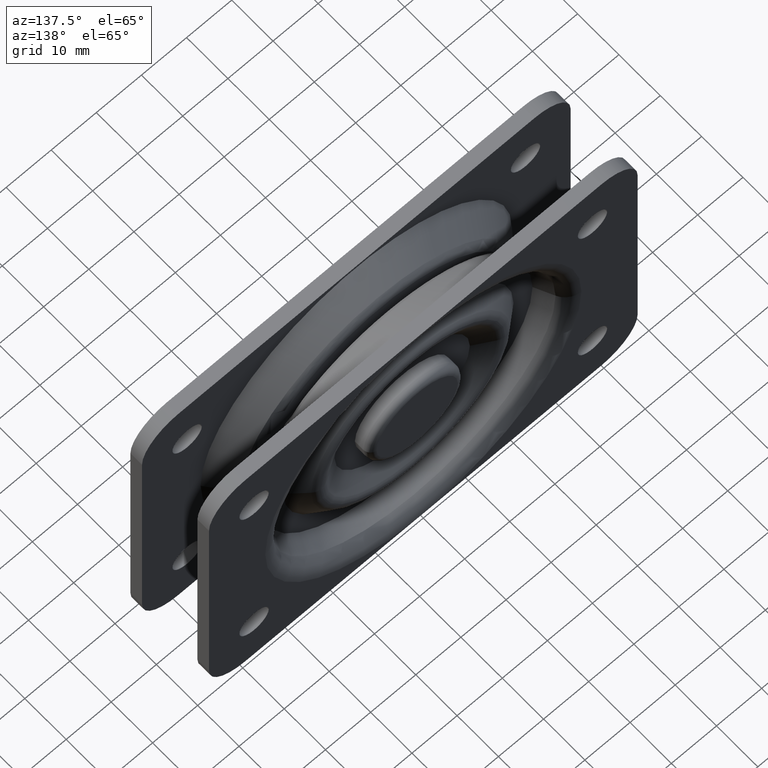
[diagram: clean part render]
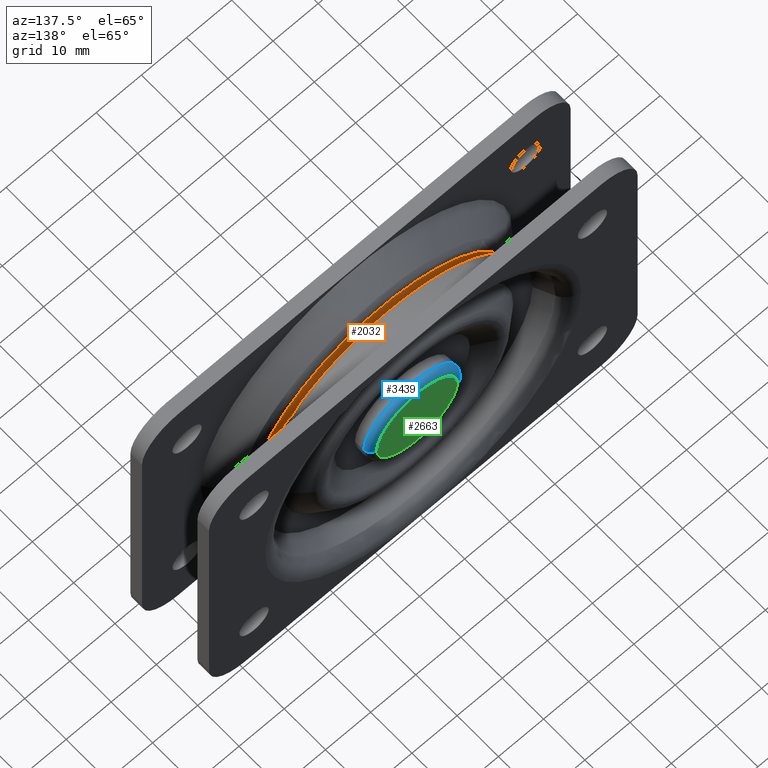
[diagram: same view with three faces highlighted in distinct colors, each labeled with its STEP entity id]
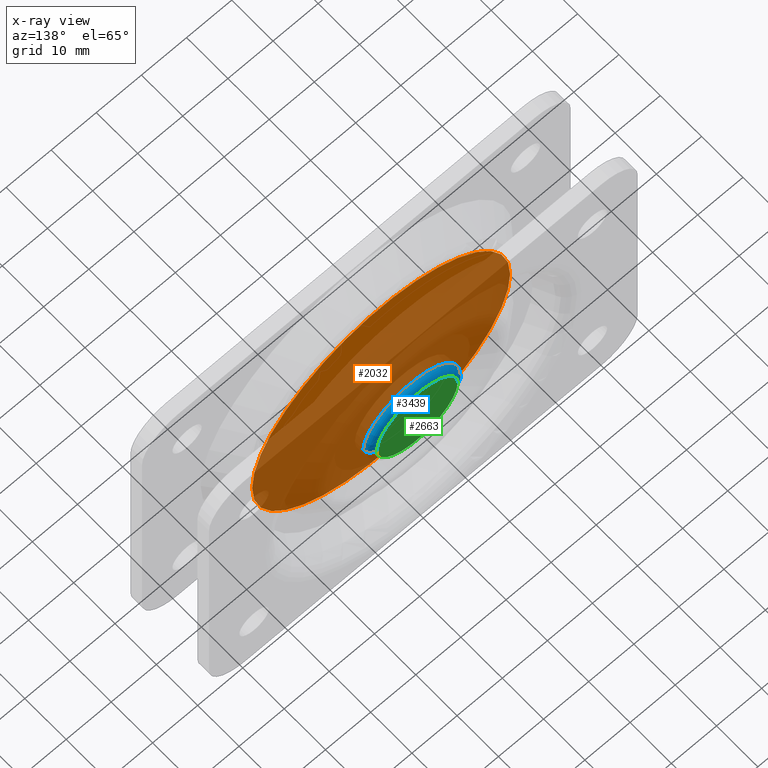
[diagram: x-ray of the same camera — body ghosted, the three highlighted faces saturated]
A machine part, auxiliary view with three faces highlighted in distinct colors.
The next image is the same camera in x-ray (body ghosted, the three faces saturated) — at least one of them is partly hidden behind the body in this view.
Their STEP definitions:

[orange] entity #2032 — the highlighted planar face has unit normal (0, 1, 0).
#175 = AXIS2_PLACEMENT_3D ( 'NONE', #3744, #1109, #3370 ) ;
#188 = AXIS2_PLACEMENT_3D ( 'NONE', #3596, #3578, #3200 ) ;
#413 = CARTESIAN_POINT ( 'NONE',  ( 1.773019755452688432E-15, -10.20000000000000284, -1.985451312893575829E-15 ) ) ;
#502 = EDGE_LOOP ( 'NONE', ( #2780, #1042 ) ) ;
#1042 = ORIENTED_EDGE ( 'NONE', *, *, #4201, .T. ) ;
#1109 = DIRECTION ( 'NONE',  ( 0.0000000000000000000, 1.000000000000000000, 0.0000000000000000000 ) ) ;
#1375 = AXIS2_PLACEMENT_3D ( 'NONE', #413, #1575, #1591 ) ;
#1575 = DIRECTION ( 'NONE',  ( 0.0000000000000000000, 1.000000000000000000, 0.0000000000000000000 ) ) ;
#1591 = DIRECTION ( 'NONE',  ( 1.000000000000000000, 0.0000000000000000000, 0.0000000000000000000 ) ) ;
#1856 = EDGE_CURVE ( 'NONE', #3301, #2028, #3743, .T. ) ;
#2028 = VERTEX_POINT ( 'NONE', #3575 ) ;
#2032 = ADVANCED_FACE ( 'NONE', ( #4158 ), #2091, .T. ) ;
#2091 = PLANE ( 'NONE',  #175 ) ;
#2780 = ORIENTED_EDGE ( 'NONE', *, *, #1856, .T. ) ;
#3200 = DIRECTION ( 'NONE',  ( 1.000000000000000000, 0.0000000000000000000, 0.0000000000000000000 ) ) ;
#3301 = VERTEX_POINT ( 'NONE', #4375 ) ;
#3370 = DIRECTION ( 'NONE',  ( 1.000000000000000000, 0.0000000000000000000, -0.0000000000000000000 ) ) ;
#3575 = CARTESIAN_POINT ( 'NONE',  ( -28.59295476954501680, -10.20000000000000284, -5.607707722449681500E-15 ) ) ;
#3578 = DIRECTION ( 'NONE',  ( 0.0000000000000000000, 1.000000000000000000, 0.0000000000000000000 ) ) ;
#3596 = CARTESIAN_POINT ( 'NONE',  ( 1.773019755452688432E-15, -10.20000000000000284, -1.985451312893575829E-15 ) ) ;
#3636 = CIRCLE ( 'NONE', #188, 28.59295476954502035 ) ;
#3743 = CIRCLE ( 'NONE', #1375, 28.59295476954502035 ) ;
#3744 = CARTESIAN_POINT ( 'NONE',  ( 1.773019755452688432E-15, -10.20000000000000284, -1.985451312893575829E-15 ) ) ;
#4158 = FACE_OUTER_BOUND ( 'NONE', #502, .T. ) ;
#4201 = EDGE_CURVE ( 'NONE', #2028, #3301, #3636, .T. ) ;
#4375 = CARTESIAN_POINT ( 'NONE',  ( 28.59295476954502391, -10.20000000000000284, -1.985451312893575829E-15 ) ) ;

[blue] entity #3439 — the highlighted toroidal blend (fillet) surface has major radius 9 mm and minor (blend) radius 1.5 mm.
#203 = DIRECTION ( 'NONE',  ( 0.0000000000000000000, 1.000000000000000000, 0.0000000000000000000 ) ) ;
#265 = EDGE_CURVE ( 'NONE', #3032, #1043, #1298, .T. ) ;
#274 = EDGE_CURVE ( 'NONE', #4454, #1043, #294, .T. ) ;
#294 = CIRCLE ( 'NONE', #3249, 9.000000000000003553 ) ;
#305 = EDGE_CURVE ( 'NONE', #3032, #2642, #3583, .T. ) ;
#362 = TOROIDAL_SURFACE ( 'NONE', #902, 9.000000000000001776, 1.500000000000000000 ) ;
#544 = CARTESIAN_POINT ( 'NONE',  ( -9.000000000000003553, -1.500000000000000444, 0.0000000000000000000 ) ) ;
#597 = DIRECTION ( 'NONE',  ( -1.224646799147353207E-16, 0.0000000000000000000, 1.000000000000000000 ) ) ;
#814 = CIRCLE ( 'NONE', #4581, 1.499999999999999556 ) ;
#902 = AXIS2_PLACEMENT_3D ( 'NONE', #4083, #4100, #4474 ) ;
#977 = AXIS2_PLACEMENT_3D ( 'NONE', #4328, #597, #1330 ) ;
#1029 = DIRECTION ( 'NONE',  ( -1.000000000000000000, 0.0000000000000000000, 0.0000000000000000000 ) ) ;
#1043 = VERTEX_POINT ( 'NONE', #1399 ) ;
#1298 = CIRCLE ( 'NONE', #977, 1.499999999999999556 ) ;
#1330 = DIRECTION ( 'NONE',  ( 1.000000000000000000, 0.0000000000000000000, 1.224646799147353454E-16 ) ) ;
#1399 = CARTESIAN_POINT ( 'NONE',  ( 9.000000000000001776, -1.500000000000000444, 1.194030629168669667E-15 ) ) ;
#2204 = DIRECTION ( 'NONE',  ( -0.0000000000000000000, -1.000000000000000000, -0.0000000000000000000 ) ) ;
#2356 = ORIENTED_EDGE ( 'NONE', *, *, #2638, .F. ) ;
#2574 = DIRECTION ( 'NONE',  ( -1.000000000000000000, 0.0000000000000000000, 0.0000000000000000000 ) ) ;
#2638 = EDGE_CURVE ( 'NONE', #2642, #4454, #814, .T. ) ;
#2642 = VERTEX_POINT ( 'NONE', #4807 ) ;
#2733 = AXIS2_PLACEMENT_3D ( 'NONE', #4050, #2204, #2574 ) ;
#2756 = ORIENTED_EDGE ( 'NONE', *, *, #274, .F. ) ;
#2847 = DIRECTION ( 'NONE',  ( -1.000000000000000000, 0.0000000000000000000, 0.0000000000000000000 ) ) ;
#2926 = CARTESIAN_POINT ( 'NONE',  ( -9.000000000000003553, -3.000000000000000444, 0.0000000000000000000 ) ) ;
#3032 = VERTEX_POINT ( 'NONE', #4228 ) ;
#3249 = AXIS2_PLACEMENT_3D ( 'NONE', #3979, #203, #2847 ) ;
#3439 = ADVANCED_FACE ( 'NONE', ( #4648 ), #362, .T. ) ;
#3583 = CIRCLE ( 'NONE', #2733, 10.50000000000000178 ) ;
#3675 = DIRECTION ( 'NONE',  ( 0.0000000000000000000, 0.0000000000000000000, -1.000000000000000000 ) ) ;
#3834 = EDGE_LOOP ( 'NONE', ( #4861, #3947, #2756, #2356 ) ) ;
#3947 = ORIENTED_EDGE ( 'NONE', *, *, #265, .T. ) ;
#3979 = CARTESIAN_POINT ( 'NONE',  ( 0.0000000000000000000, -1.500000000000000444, 0.0000000000000000000 ) ) ;
#4050 = CARTESIAN_POINT ( 'NONE',  ( 0.0000000000000000000, -3.000000000000000444, 0.0000000000000000000 ) ) ;
#4083 = CARTESIAN_POINT ( 'NONE',  ( 0.0000000000000000000, -3.000000000000000444, 0.0000000000000000000 ) ) ;
#4100 = DIRECTION ( 'NONE',  ( 0.0000000000000000000, 1.000000000000000000, 0.0000000000000000000 ) ) ;
#4228 = CARTESIAN_POINT ( 'NONE',  ( 10.50000000000000000, -3.000000000000000444, 0.0000000000000000000 ) ) ;
#4328 = CARTESIAN_POINT ( 'NONE',  ( 9.000000000000003553, -3.000000000000000444, 1.102182119232618108E-15 ) ) ;
#4454 = VERTEX_POINT ( 'NONE', #544 ) ;
#4474 = DIRECTION ( 'NONE',  ( -1.000000000000000000, 0.0000000000000000000, 0.0000000000000000000 ) ) ;
#4581 = AXIS2_PLACEMENT_3D ( 'NONE', #2926, #3675, #1029 ) ;
#4648 = FACE_OUTER_BOUND ( 'NONE', #3834, .T. ) ;
#4807 = CARTESIAN_POINT ( 'NONE',  ( -10.50000000000000000, -3.000000000000000444, 1.285879139104721028E-15 ) ) ;
#4861 = ORIENTED_EDGE ( 'NONE', *, *, #305, .F. ) ;

[green] entity #2663 — the highlighted planar face has unit normal (0, 1, 0).
#203 = DIRECTION ( 'NONE',  ( 0.0000000000000000000, 1.000000000000000000, 0.0000000000000000000 ) ) ;
#274 = EDGE_CURVE ( 'NONE', #4454, #1043, #294, .T. ) ;
#294 = CIRCLE ( 'NONE', #3249, 9.000000000000003553 ) ;
#544 = CARTESIAN_POINT ( 'NONE',  ( -9.000000000000003553, -1.500000000000000444, 0.0000000000000000000 ) ) ;
#934 = CIRCLE ( 'NONE', #1898, 9.000000000000003553 ) ;
#973 = CARTESIAN_POINT ( 'NONE',  ( 0.0000000000000000000, -1.500000000000000444, 0.0000000000000000000 ) ) ;
#1043 = VERTEX_POINT ( 'NONE', #1399 ) ;
#1179 = DIRECTION ( 'NONE',  ( 0.0000000000000000000, 1.000000000000000000, 0.0000000000000000000 ) ) ;
#1362 = DIRECTION ( 'NONE',  ( -1.000000000000000000, 0.0000000000000000000, 0.0000000000000000000 ) ) ;
#1399 = CARTESIAN_POINT ( 'NONE',  ( 9.000000000000001776, -1.500000000000000444, 1.194030629168669667E-15 ) ) ;
#1793 = PLANE ( 'NONE',  #2811 ) ;
#1898 = AXIS2_PLACEMENT_3D ( 'NONE', #3817, #1179, #4226 ) ;
#2663 = ADVANCED_FACE ( 'NONE', ( #2922 ), #1793, .T. ) ;
#2811 = AXIS2_PLACEMENT_3D ( 'NONE', #973, #4054, #1362 ) ;
#2847 = DIRECTION ( 'NONE',  ( -1.000000000000000000, 0.0000000000000000000, 0.0000000000000000000 ) ) ;
#2922 = FACE_OUTER_BOUND ( 'NONE', #3505, .T. ) ;
#3249 = AXIS2_PLACEMENT_3D ( 'NONE', #3979, #203, #2847 ) ;
#3444 = ORIENTED_EDGE ( 'NONE', *, *, #274, .T. ) ;
#3505 = EDGE_LOOP ( 'NONE', ( #3444, #4675 ) ) ;
#3817 = CARTESIAN_POINT ( 'NONE',  ( 0.0000000000000000000, -1.500000000000000444, 0.0000000000000000000 ) ) ;
#3959 = EDGE_CURVE ( 'NONE', #1043, #4454, #934, .T. ) ;
#3979 = CARTESIAN_POINT ( 'NONE',  ( 0.0000000000000000000, -1.500000000000000444, 0.0000000000000000000 ) ) ;
#4054 = DIRECTION ( 'NONE',  ( 0.0000000000000000000, 1.000000000000000000, 0.0000000000000000000 ) ) ;
#4226 = DIRECTION ( 'NONE',  ( -1.000000000000000000, 0.0000000000000000000, 0.0000000000000000000 ) ) ;
#4454 = VERTEX_POINT ( 'NONE', #544 ) ;
#4675 = ORIENTED_EDGE ( 'NONE', *, *, #3959, .T. ) ;